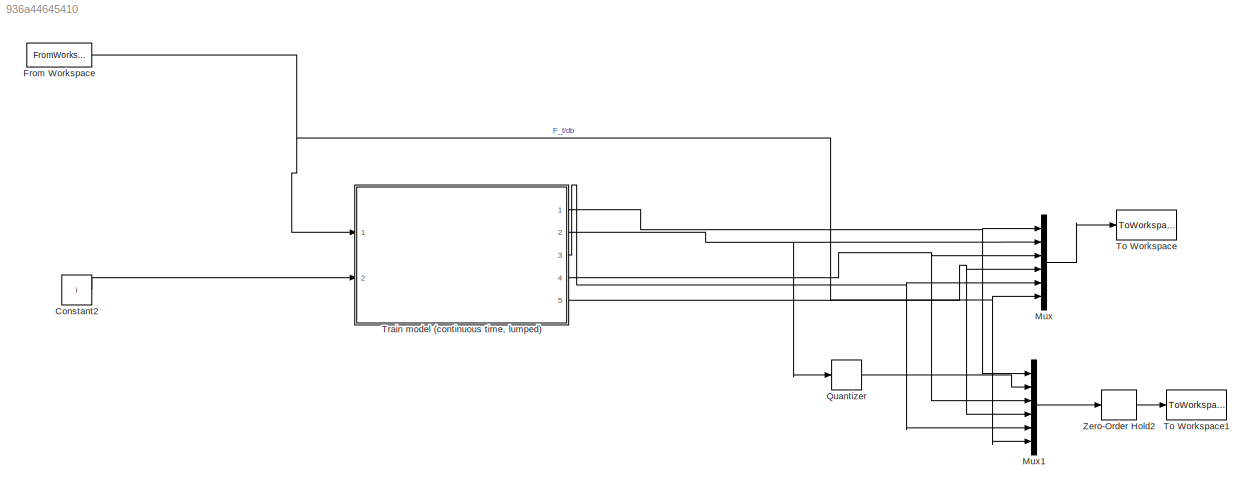
MODEL slx_936a44645410
KIND model
CONFIG AbsTol = auto
CONFIG EnableMultiTasking = off
CONFIG FixedStep = auto
CONFIG MaxStep = auto
CONFIG MinStep = auto
CONFIG RelTol = 1e-3
CONFIG SampleTimeConstraint = Unconstrained
CONFIG Solver = VariableStepAuto
CONFIG SolverName = VariableStepAuto
CONFIG StartTime = 0.0
CONFIG StopTime = tmax
BLOCK [Constant] Constant2
  Value = i
BLOCK [FromWorkspace] From Workspace
  SampleTime = 0
  VariableName = simin
  ZeroCross = on
BLOCK [Mux] Mux
  DisplayOption = bar
  Inputs = 6
  Ports = [6, 1]
BLOCK [Mux] Mux1
  DisplayOption = bar
  Inputs = 6
  Ports = [6, 1]
BLOCK [Quantizer] Quantizer
  QuantizationInterval = 0.8/3.6
BLOCK [ToWorkspace] To Workspace
  FixptAsFi = on
  MaxDataPoints = inf
  Ports = [1]
  SampleTime = -1
  Save2DSignal = 3-D array (concatenate along third dimension)
  SaveFormat = Timeseries
  VariableName = simout
BLOCK [ToWorkspace] To Workspace1
  FixptAsFi = on
  MaxDataPoints = inf
  Ports = [1]
  SampleTime = -1
  Save2DSignal = 3-D array (concatenate along third dimension)
  SaveFormat = Timeseries
  VariableName = simoutD
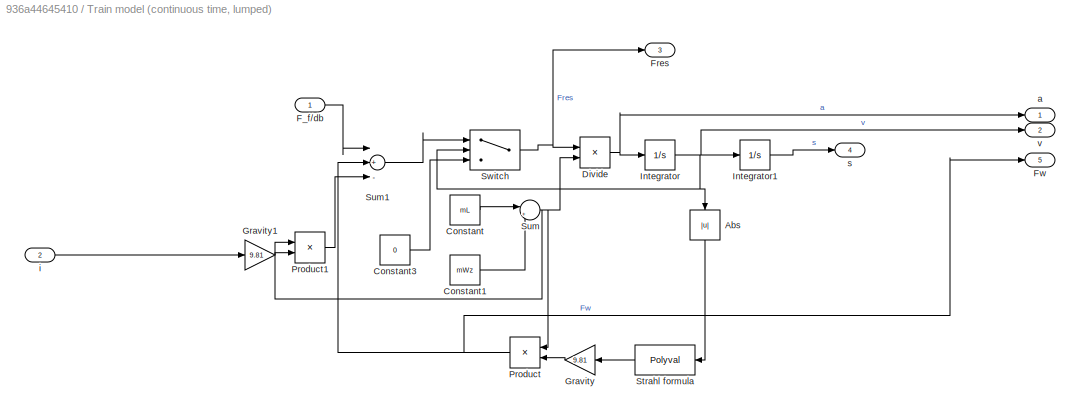
BLOCK [SubSystem] Train model (continuous time, lumped)
  Ports = [2, 5]
  RequestExecContextInheritance = off
BLOCK [Abs] Train model (continuous time, lumped)/Abs
  SaturateOnIntegerOverflow = off
BLOCK [Constant] Train model (continuous time, lumped)/Constant
  Value = mL
BLOCK [Constant] Train model (continuous time, lumped)/Constant1
  Value = mWz
BLOCK [Constant] Train model (continuous time, lumped)/Constant3
  Value = 0
BLOCK [Product] Train model (continuous time, lumped)/Divide
  InputSameDT = off
  Inputs = */
  OutDataTypeStr = Inherit: Inherit via internal rule
  Ports = [2, 1]
  RndMeth = Floor
  SaturateOnIntegerOverflow = off
BLOCK [Inport] Train model (continuous time, lumped)/F_f//db
  IconDisplay = Port number
BLOCK [Outport] Train model (continuous time, lumped)/Fres
  IconDisplay = Port number
  Port = 3
BLOCK [Outport] Train model (continuous time, lumped)/Fw
  IconDisplay = Port number
  Port = 5
BLOCK [Gain] Train model (continuous time, lumped)/Gravity
  Gain = 9.81
  OutDataTypeStr = Inherit: Inherit via internal rule
  ParamDataTypeStr = Inherit: Inherit via internal rule
  SaturateOnIntegerOverflow = off
BLOCK [Gain] Train model (continuous time, lumped)/Gravity1
  Gain = 9.81
  OutDataTypeStr = Inherit: Inherit via internal rule
  ParamDataTypeStr = Inherit: Inherit via internal rule
  SaturateOnIntegerOverflow = off
BLOCK [Integrator] Train model (continuous time, lumped)/Integrator
  InitialCondition = v0
  Ports = [1, 1]
BLOCK [Integrator] Train model (continuous time, lumped)/Integrator1
  InitialCondition = s0
  Ports = [1, 1]
BLOCK [Product] Train model (continuous time, lumped)/Product
  InputSameDT = off
  OutDataTypeStr = Inherit: Inherit via internal rule
  Ports = [2, 1]
  RndMeth = Floor
  SaturateOnIntegerOverflow = off
BLOCK [Product] Train model (continuous time, lumped)/Product1
  InputSameDT = off
  OutDataTypeStr = Inherit: Inherit via internal rule
  Ports = [2, 1]
  RndMeth = Floor
  SaturateOnIntegerOverflow = off
BLOCK [Polyval] Train model (continuous time, lumped)/Strahl formula
  Coefs = Pres
BLOCK [Sum] Train model (continuous time, lumped)/Sum
  IconShape = round
  InputSameDT = off
  Inputs = |++
  OutDataTypeStr = Inherit: Inherit via internal rule
  Ports = [2, 1]
  SaturateOnIntegerOverflow = off
BLOCK [Sum] Train model (continuous time, lumped)/Sum1
  InputSameDT = off
  Inputs = |+--
  OutDataTypeStr = Inherit: Inherit via internal rule
  Ports = [3, 1]
  SaturateOnIntegerOverflow = off
BLOCK [Switch] Train model (continuous time, lumped)/Switch
  Criteria = u2 > Threshold
  InputSameDT = off
  SaturateOnIntegerOverflow = off
BLOCK [Outport] Train model (continuous time, lumped)/a
  IconDisplay = Port number
BLOCK [Inport] Train model (continuous time, lumped)/i
  IconDisplay = Port number
  Port = 2
BLOCK [Outport] Train model (continuous time, lumped)/s
  IconDisplay = Port number
  Port = 4
BLOCK [Outport] Train model (continuous time, lumped)/v
  IconDisplay = Port number
  Port = 2
BLOCK [ZeroOrderHold] Zero-Order Hold2
  SampleTime = Ts
LINE Constant2:1 -> Train model (continuous time, lumped):2
NET From Workspace:1 -> Mux1:6, Mux:6, Train model (continuous time, lumped):1
LINE Mux1:1 -> Zero-Order Hold2:1
LINE Mux:1 -> To Workspace:1
LINE Quantizer:1 -> Mux1:2
LINE Train model (continuous time, lumped)/Abs:1 -> Train model (continuous time, lumped)/Strahl formula:1
LINE Train model (continuous time, lumped)/Constant1:1 -> Train model (continuous time, lumped)/Sum:2
LINE Train model (continuous time, lumped)/Constant3:1 -> Train model (continuous time, lumped)/Switch:3
LINE Train model (continuous time, lumped)/Constant:1 -> Train model (continuous time, lumped)/Sum:1
NET Train model (continuous time, lumped)/Divide:1 -> Train model (continuous time, lumped)/Integrator:1, Train model (continuous time, lumped)/a:1
LINE Train model (continuous time, lumped)/F_f//db:1 -> Train model (continuous time, lumped)/Sum1:1
LINE Train model (continuous time, lumped)/Gravity1:1 -> Train model (continuous time, lumped)/Product1:2
LINE Train model (continuous time, lumped)/Gravity:1 -> Train model (continuous time, lumped)/Product:2
LINE Train model (continuous time, lumped)/Integrator1:1 -> Train model (continuous time, lumped)/s:1
NET Train model (continuous time, lumped)/Integrator:1 -> Train model (continuous time, lumped)/Abs:1, Train model (continuous time, lumped)/Integrator1:1, Train model (continuous time, lumped)/Switch:2, Train model (continuous time, lumped)/v:1
LINE Train model (continuous time, lumped)/Product1:1 -> Train model (continuous time, lumped)/Sum1:3
NET Train model (continuous time, lumped)/Product:1 -> Train model (continuous time, lumped)/Fw:1, Train model (continuous time, lumped)/Sum1:2
LINE Train model (continuous time, lumped)/Strahl formula:1 -> Train model (continuous time, lumped)/Gravity:1
LINE Train model (continuous time, lumped)/Sum1:1 -> Train model (continuous time, lumped)/Switch:1
NET Train model (continuous time, lumped)/Sum:1 -> Train model (continuous time, lumped)/Divide:2, Train model (continuous time, lumped)/Product1:1, Train model (continuous time, lumped)/Product:1
NET Train model (continuous time, lumped)/Switch:1 -> Train model (continuous time, lumped)/Divide:1, Train model (continuous time, lumped)/Fres:1
LINE Train model (continuous time, lumped)/i:1 -> Train model (continuous time, lumped)/Gravity1:1
NET Train model (continuous time, lumped):1 -> Mux1:1, Mux:1
NET Train model (continuous time, lumped):2 -> Mux:2, Quantizer:1
NET Train model (continuous time, lumped):3 -> Mux1:5, Mux:5
NET Train model (continuous time, lumped):4 -> Mux1:3, Mux:3
NET Train model (continuous time, lumped):5 -> Mux1:4, Mux:4
LINE Zero-Order Hold2:1 -> To Workspace1:1
note: NET lines group one-source signal fan-out (src -> all destinations, sorted); 1:1 wires keep LINE
